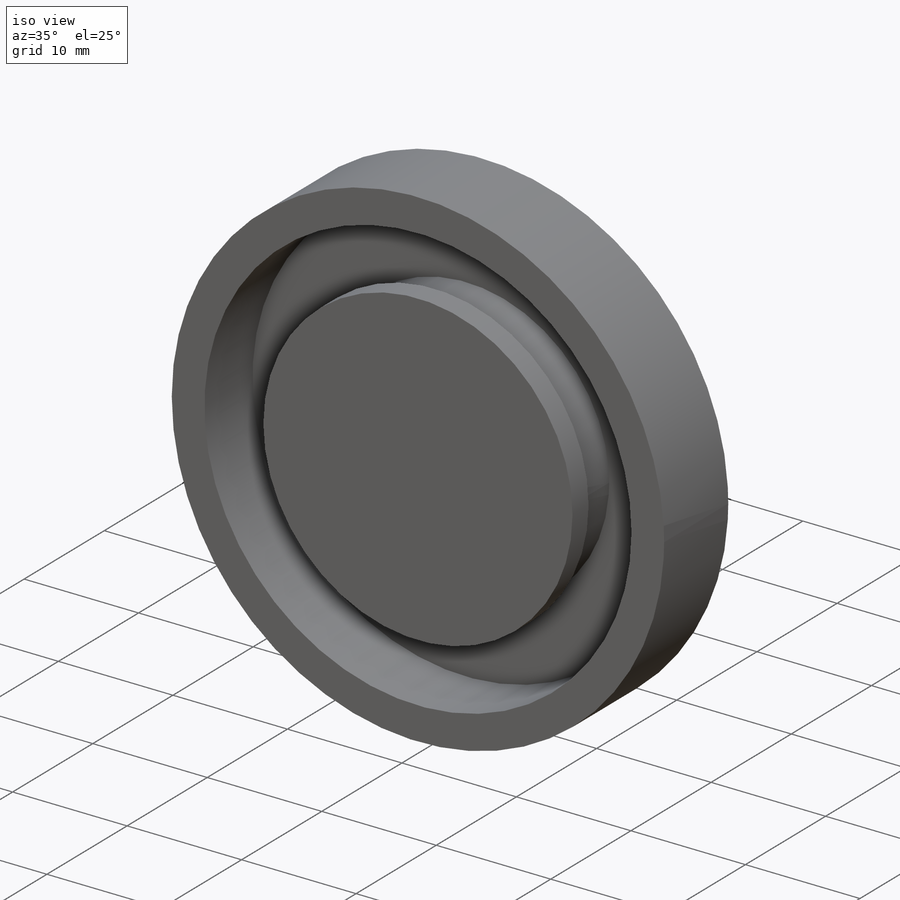
[diagram: iso view]
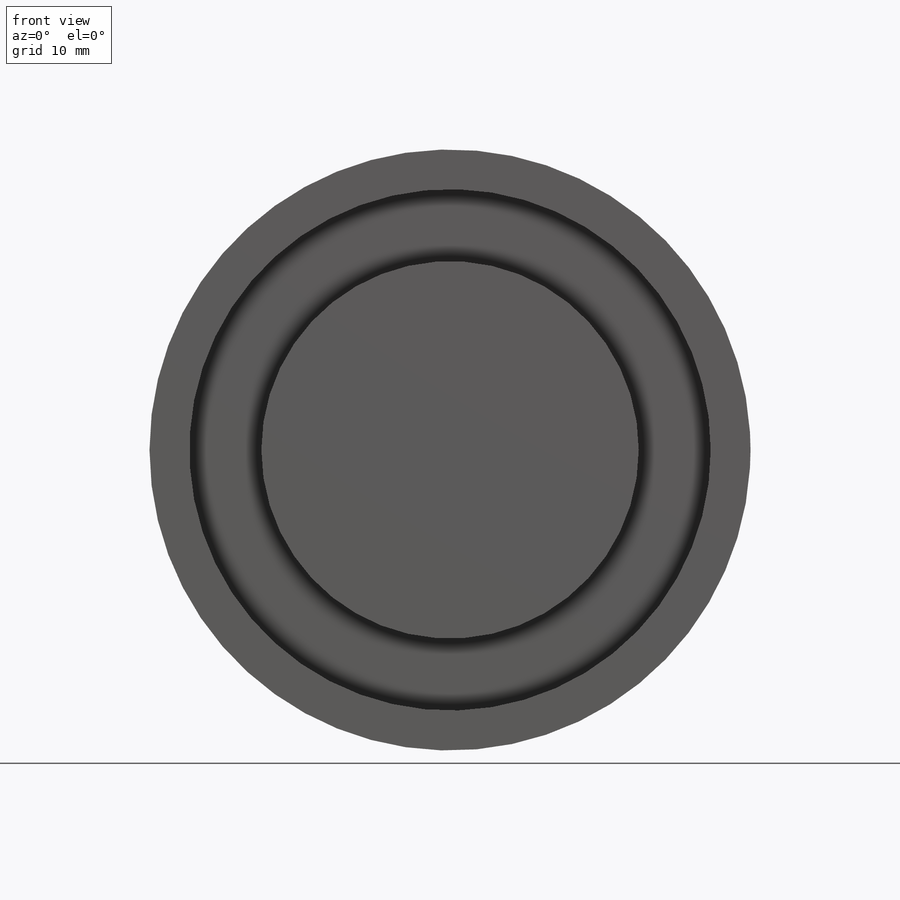
[diagram: front view]
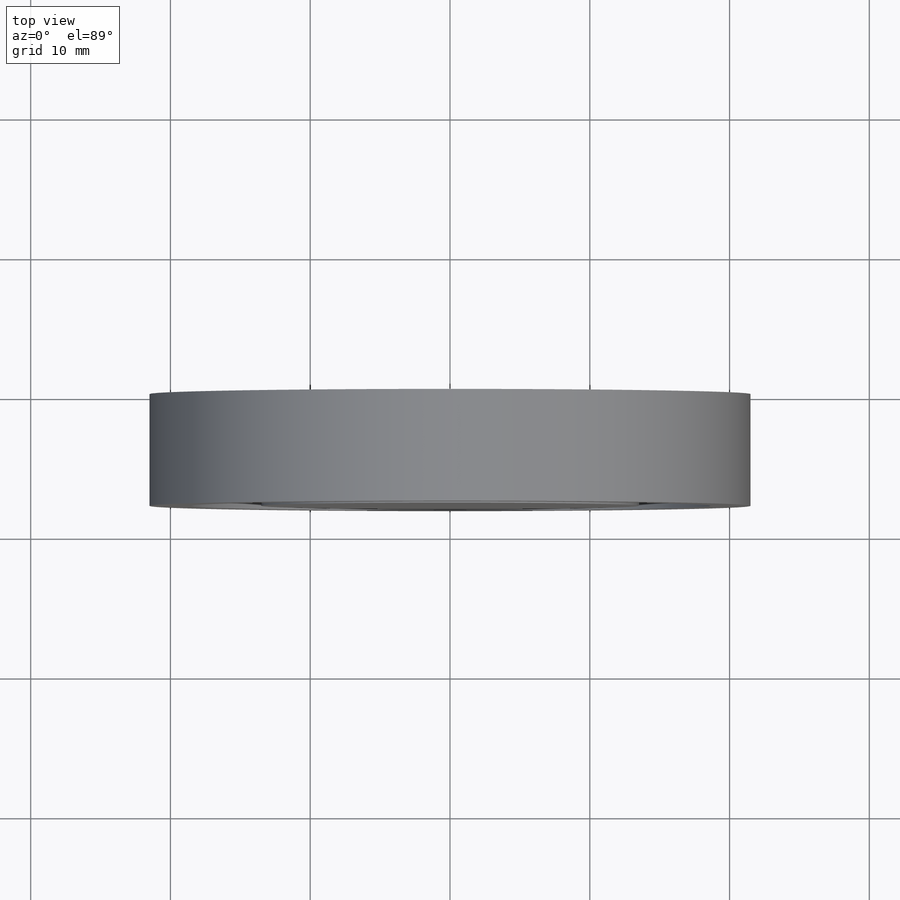
[diagram: top view]
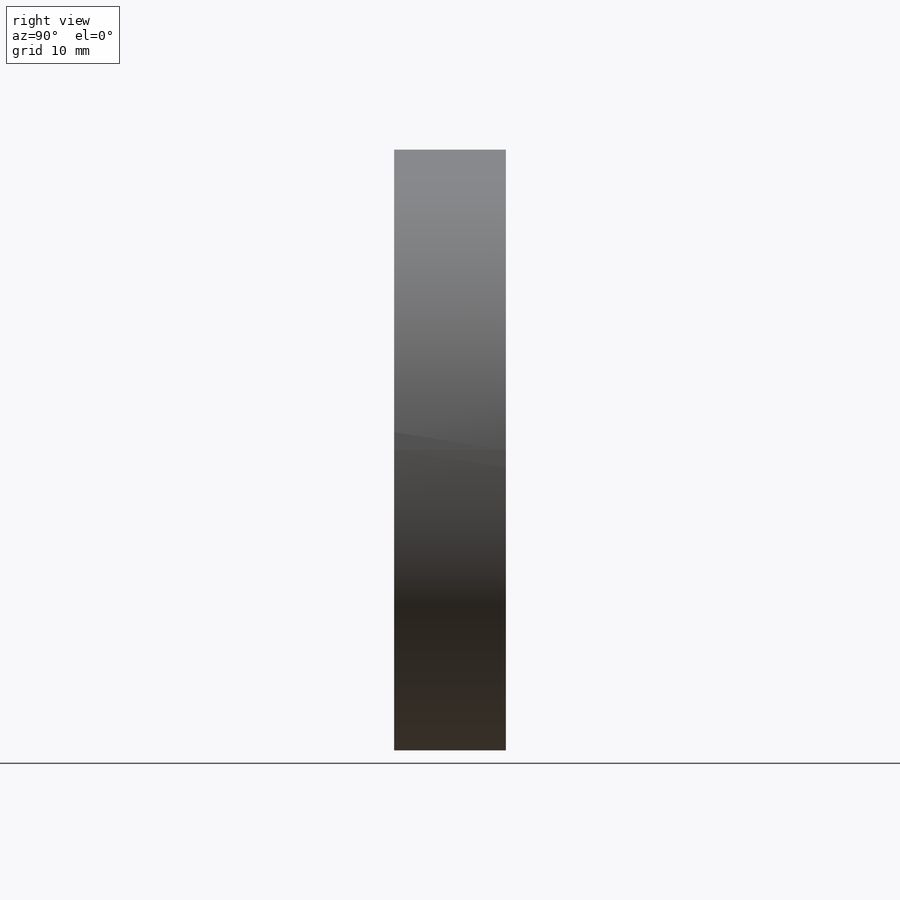
[diagram: right view]
SOLIDWORKS PART (.sldprt)
format: sldprt  version: not decoded by parser v0  size: 478,720 bytes
history: native  units: mm
features: sketch x8, extrude x4, cut_extrude x4, material x1, pattern_circular x1 (+16 scaffold rows collapsed)
feature tree (34):
  scaffold x16  (default folders/planes/origin — collapsed)
  material  "Material <not specified>"
  sketch  "Sketch1"  dims[D1=43.0mm]
  extrude  "Extrude1"  Depth=8mm
  sketch  "Sketch2"  dims[D1=37.3mm]
  cut_extrude  "Extrude2"  Depth=6mm
  sketch  "Sketch3"  dims[D1=25.0mm]
  extrude  "Extrude3"  Depth=4mm
  sketch  "Sketch4"  dims[D1=27.0mm]
  extrude  "Extrude4"  Depth=2mm
  sketch  "Sketch7"  dims[D1=0.4mm D2=13.4mm]
  extrude  "Extrude10"  Depth=2mm
  pattern_circular  "CirPattern5"  Count=160 Angle=360deg
  sketch  "Sketch8"  dims[D1=1.5mm]
  cut_extrude  "Extrude11"  [1 undecoded]
  sketch  "Sketch9"  dims[D1=~20.750502mm]
  cut_extrude  "Extrude13"  Depth=1mm
  sketch  "Sketch10"  dims[D1=~20.742678mm]
  cut_extrude  "Extrude14"  Depth=1mm
decode coverage: 16 of 17 modeling features carry decoded parameters
note: ~ marks probable driven/reference dimensions
note: 1 parameter value undecoded
note: suppression state not decoded; provenance and decode notes live in map.json
